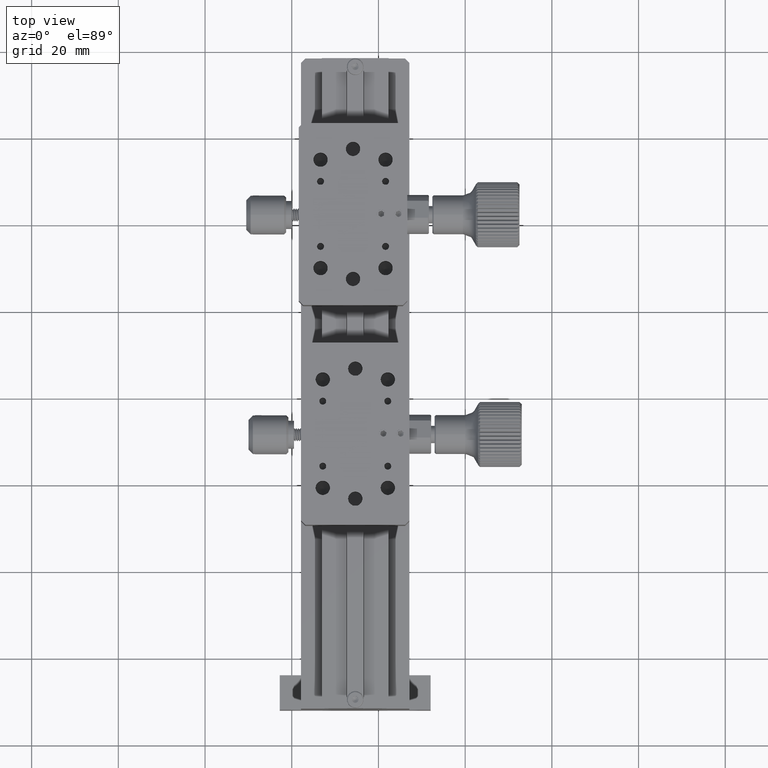
[diagram: clean part render]
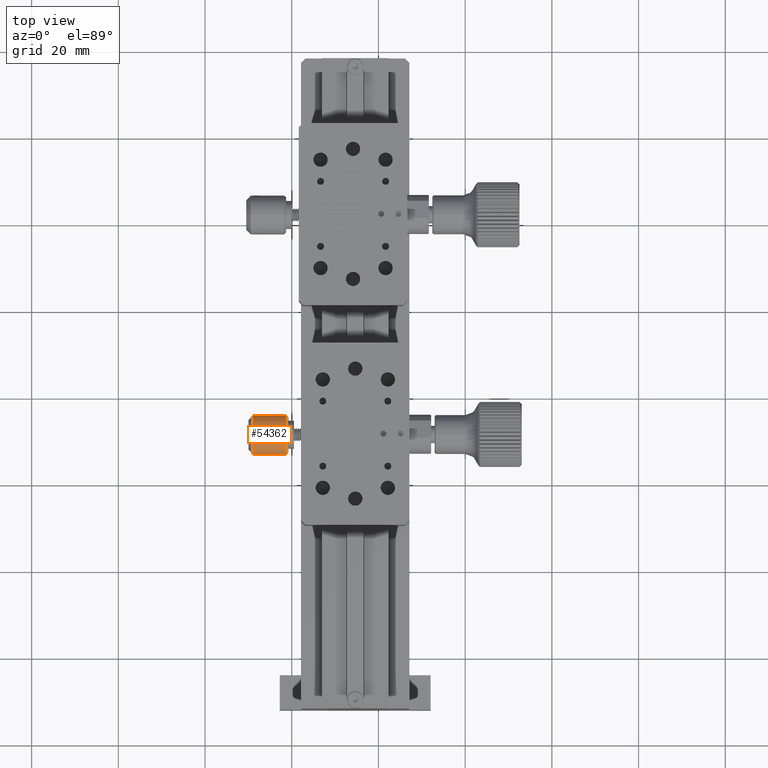
[diagram: same view with one face highlighted and labeled with its STEP entity id]
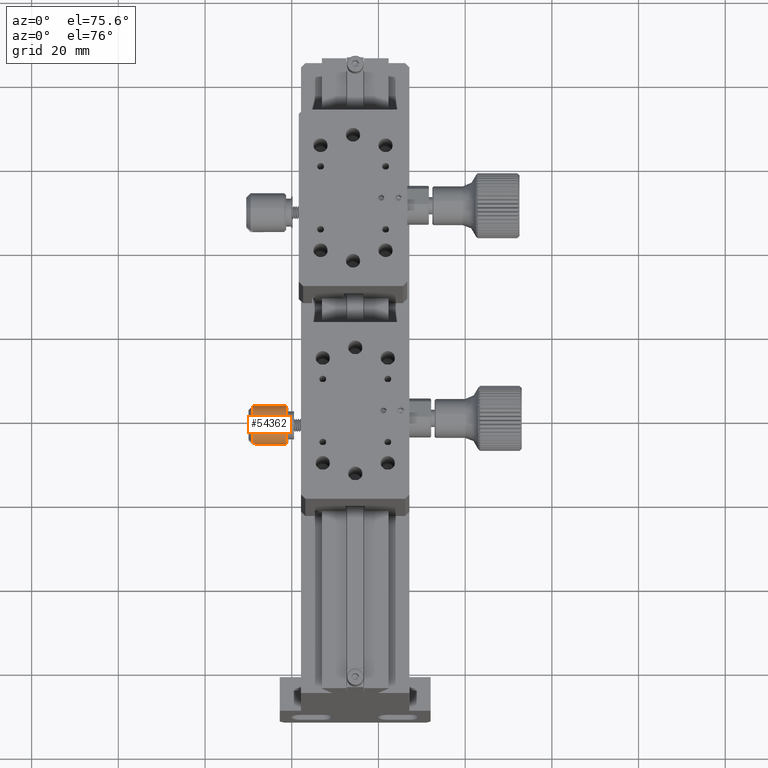
[diagram: same view with one face highlighted and labeled with its STEP entity id]
A machine part, top view. The second image highlights one B-rep face of the part: STEP entity #54362.
A second angle (auxiliary view) of the same face is appended — the face is thin or edge-on in the first view.
In plain terms, the highlighted cylindrical surface (bore or boss wall) has radius 4.5 mm, axis along (-1, 0, 0).
Its self-contained STEP definition (entity closure, byte-faithful):
#145 = VERTEX_POINT ( 'NONE', #103756 ) ;
#7513 = ORIENTED_EDGE ( 'NONE', *, *, #187012, .T. ) ;
#7710 = FACE_OUTER_BOUND ( 'NONE', #158463, .T. ) ;
#12553 = ORIENTED_EDGE ( 'NONE', *, *, #173146, .T. ) ;
#18810 = DIRECTION ( 'NONE',  ( 0.000000000000000000, 0.000000000000000000, 1.000000000000000000 ) ) ;
#21581 = AXIS2_PLACEMENT_3D ( 'NONE', #107541, #179936, #18810 ) ;
#27773 = ORIENTED_EDGE ( 'NONE', *, *, #78661, .T. ) ;
#30927 = VERTEX_POINT ( 'NONE', #89495 ) ;
#38228 = CARTESIAN_POINT ( 'NONE',  ( -41.27109690308995482, -8.775815080234213639, 7.845841171379083434 ) ) ;
#43656 = ORIENTED_EDGE ( 'NONE', *, *, #175722, .T. ) ;
#43766 = AXIS2_PLACEMENT_3D ( 'NONE', #38228, #109446, #91924 ) ;
#53860 = DIRECTION ( 'NONE',  ( -1.000000000000000000, -0.000000000000000000, 0.000000000000000000 ) ) ;
#54211 = CARTESIAN_POINT ( 'NONE',  ( -48.47109690309000030, -4.338755242909511978, 7.095841171379083434 ) ) ;
#54362 = ADVANCED_FACE ( 'NONE', ( #7710, #217855 ), #216700, .T. ) ;
#56720 = CARTESIAN_POINT ( 'NONE',  ( -49.97109690308995056, -8.775815080234213639, 7.845841171379083434 ) ) ;
#61136 = AXIS2_PLACEMENT_3D ( 'NONE', #117461, #67179, #120888 ) ;
#61973 = LINE ( 'NONE', #99313, #150887 ) ;
#62262 = AXIS2_PLACEMENT_3D ( 'NONE', #175218, #84170, #99390 ) ;
#67179 = DIRECTION ( 'NONE',  ( 1.000000000000000000, -0.000000000000000000, -0.000000000000000000 ) ) ;
#68155 = EDGE_CURVE ( 'NONE', #81328, #131240, #83550, .T. ) ;
#69575 = CIRCLE ( 'NONE', #62262, 4.500000000000003553 ) ;
#74054 = DIRECTION ( 'NONE',  ( 1.000000000000000000, 0.000000000000000000, 0.000000000000000000 ) ) ;
#75821 = EDGE_CURVE ( 'NONE', #145, #123197, #61973, .T. ) ;
#76347 = CARTESIAN_POINT ( 'NONE',  ( -48.47109690309000030, -13.21287491755895971, 8.595841171379085210 ) ) ;
#78493 = LINE ( 'NONE', #96000, #186427 ) ;
#78661 = EDGE_CURVE ( 'NONE', #103701, #145, #143537, .T. ) ;
#78871 = DIRECTION ( 'NONE',  ( -1.000000000000000000, 0.000000000000000000, 0.000000000000000000 ) ) ;
#79516 = DIRECTION ( 'NONE',  ( -1.000000000000000000, -0.000000000000000000, -0.000000000000000000 ) ) ;
#81328 = VERTEX_POINT ( 'NONE', #164876 ) ;
#81384 = DIRECTION ( 'NONE',  ( 0.000000000000000000, 0.000000000000000000, 1.000000000000000000 ) ) ;
#83550 = LINE ( 'NONE', #54211, #146722 ) ;
#84170 = DIRECTION ( 'NONE',  ( 1.000000000000000000, -0.000000000000000000, -0.000000000000000000 ) ) ;
#89495 = CARTESIAN_POINT ( 'NONE',  ( -48.47109690309000030, -4.338755242909497767, 8.595841171379085210 ) ) ;
#91924 = DIRECTION ( 'NONE',  ( 0.000000000000000000, 0.000000000000000000, 1.000000000000000000 ) ) ;
#96000 = CARTESIAN_POINT ( 'NONE',  ( -48.47109690309000030, -13.21287491755900056, 8.595841171379085210 ) ) ;
#99313 = CARTESIAN_POINT ( 'NONE',  ( -48.47109690309000030, -13.21287491755900056, 7.095841171379083434 ) ) ;
#99390 = DIRECTION ( 'NONE',  ( 0.000000000000000000, 0.000000000000000000, 1.000000000000000000 ) ) ;
#101579 = VERTEX_POINT ( 'NONE', #191474 ) ;
#101740 = ORIENTED_EDGE ( 'NONE', *, *, #75821, .T. ) ;
#103701 = VERTEX_POINT ( 'NONE', #76347 ) ;
#103756 = CARTESIAN_POINT ( 'NONE',  ( -48.47109690309000030, -13.21287491755895971, 7.095841171379083434 ) ) ;
#107541 = CARTESIAN_POINT ( 'NONE',  ( -48.97109690308995056, -8.775815080234213639, 7.845841171379083434 ) ) ;
#108719 = CARTESIAN_POINT ( 'NONE',  ( -48.47109690309000030, -4.338755242909511978, 8.595841171379085210 ) ) ;
#109446 = DIRECTION ( 'NONE',  ( -1.000000000000000000, 0.000000000000000000, 0.000000000000000000 ) ) ;
#110740 = CIRCLE ( 'NONE', #43766, 4.500000000000003553 ) ;
#111022 = LINE ( 'NONE', #108719, #167129 ) ;
#117461 = CARTESIAN_POINT ( 'NONE',  ( -48.47109690309000030, -8.775815080234213639, 7.845841171379083434 ) ) ;
#119500 = ORIENTED_EDGE ( 'NONE', *, *, #68155, .T. ) ;
#120888 = DIRECTION ( 'NONE',  ( 0.000000000000000000, 1.233581138472395244E-14, 1.000000000000000000 ) ) ;
#123197 = VERTEX_POINT ( 'NONE', #179185 ) ;
#125017 = AXIS2_PLACEMENT_3D ( 'NONE', #208610, #170124, #81384 ) ;
#126804 = DIRECTION ( 'NONE',  ( 0.000000000000000000, 0.000000000000000000, 1.000000000000000000 ) ) ;
#128511 = CARTESIAN_POINT ( 'NONE',  ( -48.97109690307449625, -4.338755242894675845, 8.595841171379085210 ) ) ;
#130993 = AXIS2_PLACEMENT_3D ( 'NONE', #56720, #78871, #126804 ) ;
#131240 = VERTEX_POINT ( 'NONE', #209065 ) ;
#131651 = EDGE_CURVE ( 'NONE', #131240, #30927, #158155, .T. ) ;
#143537 = CIRCLE ( 'NONE', #125017, 4.500000000000003553 ) ;
#146722 = VECTOR ( 'NONE', #74054, 1000.000000000000000 ) ;
#149724 = DIRECTION ( 'NONE',  ( 1.000000000000000000, 0.000000000000000000, -0.000000000000000000 ) ) ;
#150887 = VECTOR ( 'NONE', #79516, 1000.000000000000000 ) ;
#154176 = VERTEX_POINT ( 'NONE', #128511 ) ;
#158155 = CIRCLE ( 'NONE', #61136, 4.500000000000003553 ) ;
#158463 = EDGE_LOOP ( 'NONE', ( #43656 ) ) ;
#159653 = EDGE_CURVE ( 'NONE', #123197, #81328, #193109, .T. ) ;
#164876 = CARTESIAN_POINT ( 'NONE',  ( -48.97109690308612784, -4.338755242906028542, 7.095841171379083434 ) ) ;
#167129 = VECTOR ( 'NONE', #53860, 1000.000000000000000 ) ;
#170124 = DIRECTION ( 'NONE',  ( 1.000000000000000000, -0.000000000000000000, -0.000000000000000000 ) ) ;
#173146 = EDGE_CURVE ( 'NONE', #154176, #206470, #69575, .T. ) ;
#175218 = CARTESIAN_POINT ( 'NONE',  ( -48.97109690309000740, -8.775815080234213639, 7.845841171379083434 ) ) ;
#175722 = EDGE_CURVE ( 'NONE', #101579, #101579, #110740, .T. ) ;
#176912 = ORIENTED_EDGE ( 'NONE', *, *, #194638, .T. ) ;
#179185 = CARTESIAN_POINT ( 'NONE',  ( -48.97109690308949581, -13.21287491755895971, 7.095841171379083434 ) ) ;
#179936 = DIRECTION ( 'NONE',  ( 1.000000000000000000, -0.000000000000000000, -0.000000000000000000 ) ) ;
#186427 = VECTOR ( 'NONE', #149724, 1000.000000000000000 ) ;
#187012 = EDGE_CURVE ( 'NONE', #30927, #154176, #111022, .T. ) ;
#191474 = CARTESIAN_POINT ( 'NONE',  ( -41.27109690308995482, -8.775815080234213639, 12.34584117137908699 ) ) ;
#193109 = CIRCLE ( 'NONE', #21581, 4.500000000000003553 ) ;
#193850 = ORIENTED_EDGE ( 'NONE', *, *, #159653, .T. ) ;
#194638 = EDGE_CURVE ( 'NONE', #206470, #103701, #78493, .T. ) ;
#199590 = EDGE_LOOP ( 'NONE', ( #101740, #193850, #119500, #229338, #7513, #12553, #176912, #27773 ) ) ;
#206470 = VERTEX_POINT ( 'NONE', #214925 ) ;
#208610 = CARTESIAN_POINT ( 'NONE',  ( -48.47109690309000030, -8.775815080234213639, 7.845841171379083434 ) ) ;
#209065 = CARTESIAN_POINT ( 'NONE',  ( -48.47109690309000030, -4.338755242909497767, 7.095841171379083434 ) ) ;
#214925 = CARTESIAN_POINT ( 'NONE',  ( -48.97109690308975871, -13.21287491755875010, 8.595841171379085210 ) ) ;
#216700 = CYLINDRICAL_SURFACE ( 'NONE', #130993, 4.500000000000003553 ) ;
#217855 = FACE_OUTER_BOUND ( 'NONE', #199590, .T. ) ;
#229338 = ORIENTED_EDGE ( 'NONE', *, *, #131651, .T. ) ;